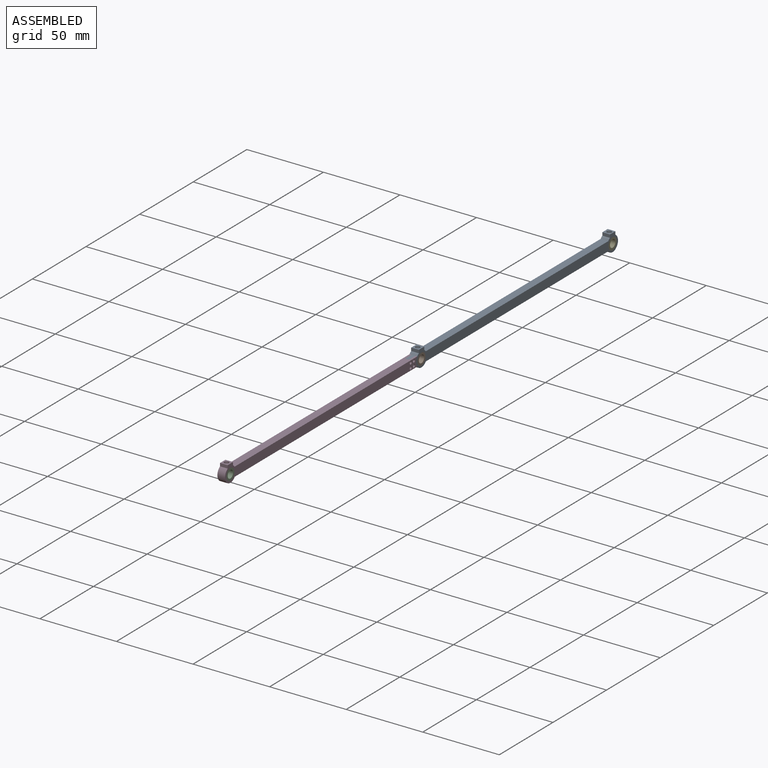
[diagram: assembled view]
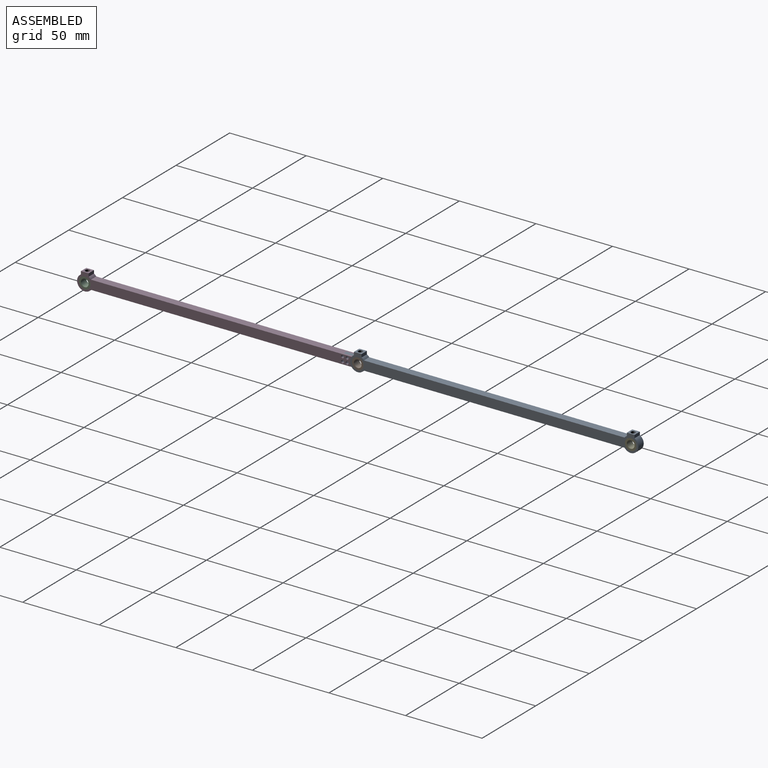
[diagram: assembled view, second angle]
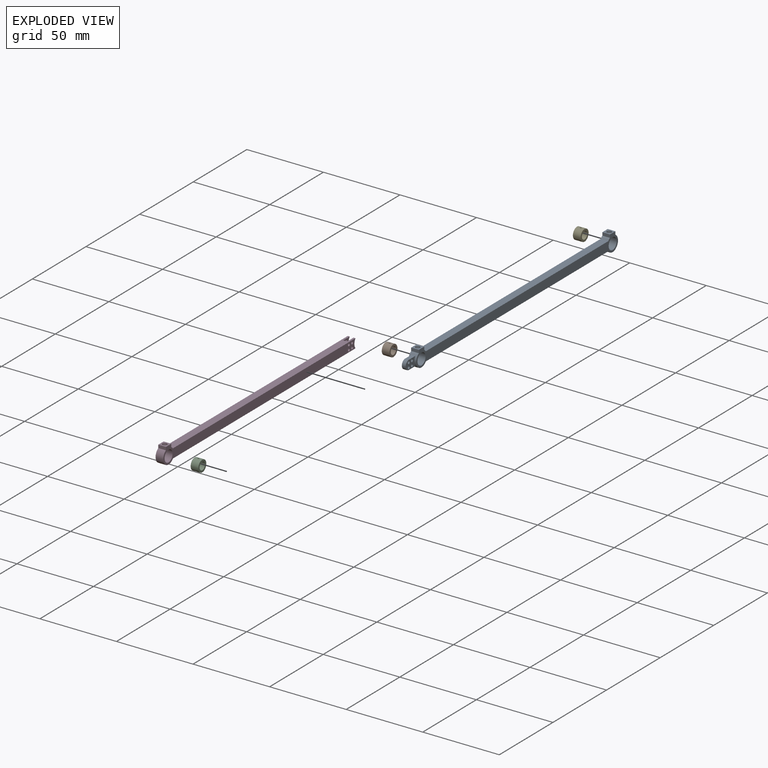
[diagram: exploded view]
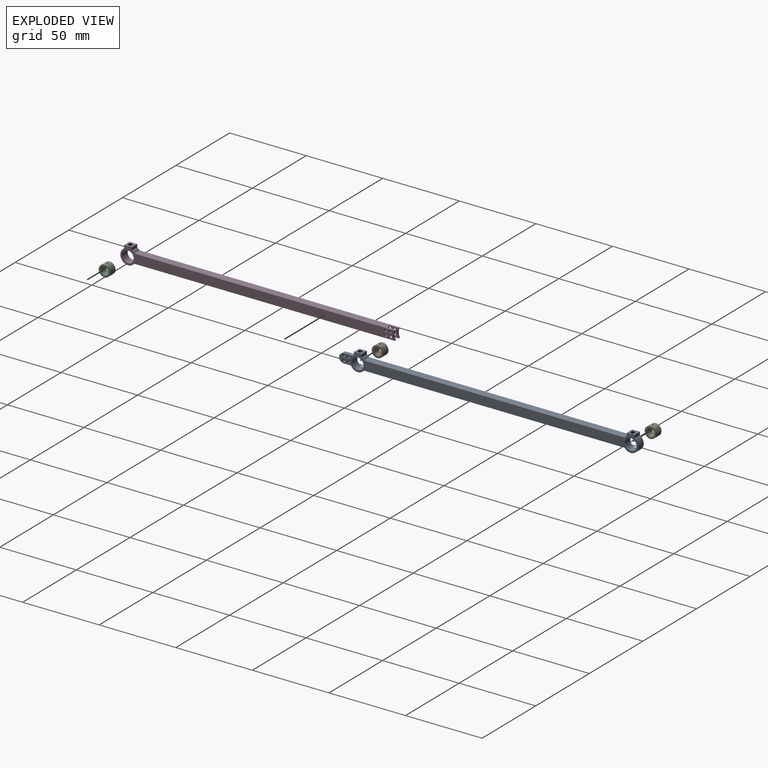
[diagram: exploded view, second angle]
ASSEMBLY  parts=5 mates=4
PART A: 27 faces, bbox 5x196.3x11.3 mm
  f0: plane 9x6mm, normal (1,0,0), area 34.7mm2, adj f2,f18,f19,f20,f21,f22,f23,f24
  f1: plane 9x6mm, normal (-1,0,0), area 34.7mm2, adj f2,f18,f19,f20,f21,f22,f23,f24
  f2: cylinder r=5mm len=9.33mm, axis (-1,0,0), area 72.5mm2, adj f0,f1,f3,f15,f16,f17,f18,f20
  f3: plane 170.25x5mm, normal (0,0,-1), area 851.3mm2, adj f2,f4,f16,f17
  f4: cylinder r=5mm len=9.33mm, axis (-1,0,0), area 88.6mm2, adj f3,f5,f16,f17
  f5: plane 5x2mm, normal (0,1,0), area 10mm2, adj f4,f6,f16,f17
  f6: plane 5x5mm, normal (0,0,1), area 17.9mm2, adj f5,f7,f16,f17,f26
  f7: plane 5x2mm, normal (0,-1,0), area 10mm2, adj f6,f8,f16,f17
  f8: cylinder r=5mm len=5mm, axis (-1,0,0), area 10.1mm2, adj f7,f9,f16,f17
  f9: plane 170.25x5mm, normal (0,0,1), area 851.3mm2, adj f8,f10,f16,f17
  f10: cylinder r=5mm len=5mm, axis (-1,0,0), area 10.1mm2, adj f9,f11,f16,f17
  f11: plane 5x2mm, normal (0,1,0), area 10mm2, adj f10,f12,f16,f17
  f12: plane 5x5mm, normal (0,0,1), area 17.9mm2, adj f11,f15,f16,f17,f25
  f13: cylinder r=3.75mm len=7.5mm, axis (-1,0,0), area 110.6mm2, adj f16,f17,f26
  f14: cylinder r=3.75mm len=7.5mm, axis (-1,0,0), area 110.6mm2, adj f16,f17,f25
  f15: plane 5x2mm, normal (0,-1,0), area 10mm2, adj f2,f12,f16,f17
  f16: plane 188.25x11.33mm, normal (1,0,0), area 1097.5mm2, adj f2,f3,f4,f5,f6,f7,f8,f9
  f17: plane 188.25x11.33mm, normal (-1,0,0), area 1097.5mm2, adj f2,f3,f4,f5,f6,f7,f8,f9
  f18: plane 6x2.5mm, normal (0,0,1), area 15mm2, adj f0,f1,f2,f19
  f19: cylinder r=3mm len=6mm, axis (-1,0,0), area 23.6mm2, adj f0,f1,f18,f20
  f20: plane 6x2.5mm, normal (0,0,-1), area 15mm2, adj f0,f1,f2,f19
  f21: cylinder r=0.95mm len=2.5mm, axis (1,0,0), area 14.9mm2, adj f0,f1
  f22: cylinder r=0.95mm len=2.5mm, axis (1,0,0), area 14.9mm2, adj f0,f1
  f23: cylinder r=0.95mm len=2.5mm, axis (1,0,0), area 14.9mm2, adj f0,f1
  f24: cylinder r=0.95mm len=2.5mm, axis (1,0,0), area 14.9mm2, adj f0,f1
  f25: cylinder r=1.5mm len=3mm, axis (0,0,1), area 25.8mm2, adj f12,f14
  f26: cylinder r=1.5mm len=3mm, axis (0,0,1), area 25.8mm2, adj f6,f13
PART B: 5 faces, bbox 5x7.5x7.5 mm
  f0: plane 7.5x7.5mm, normal (1,0,0), area 24.5mm2, adj f1,f2
  f1: cylinder r=3.75mm len=7.5mm, axis (-1,0,0), area 117mm2, adj f0,f3,f4
  f2: cylinder r=2.5mm len=5mm, axis (-1,0,0), area 77.8mm2, adj f0,f3,f4
  f3: plane 7.5x7.5mm, normal (-1,0,0), area 24.5mm2, adj f1,f2
  f4: cylinder r=0.5mm len=1.3mm, axis (0,0,1), area 4mm2, adj f1,f2
PART C: same geometry as B
PART D: 24 faces, bbox 5x179.3x11.3 mm
  f0: plane 179.25x11.33mm, normal (1,0,0), area 1044.1mm2, adj f5,f6,f7,f8,f9,f10,f11,f12
  f1: plane 179.25x11.33mm, normal (-1,0,0), area 1044.1mm2, adj f5,f6,f7,f8,f9,f10,f11,f12
  f2: plane 9x6mm, normal (1,0,0), area 34.7mm2, adj f4,f8,f9,f13,f19,f20,f21,f22
  f3: plane 9x6mm, normal (-1,0,0), area 34.7mm2, adj f4,f8,f9,f14,f15,f16,f17,f18
  f4: cylinder r=3mm len=6mm, axis (-1,0,0), area 23.6mm2, adj f2,f3,f8,f9
  f5: plane 5x5mm, normal (0,0,1), area 17.9mm2, adj f0,f1,f6,f11,f23
  f6: plane 5x2mm, normal (0,-1,0), area 10mm2, adj f0,f1,f5,f7
  f7: cylinder r=5mm len=9.33mm, axis (-1,0,0), area 88.6mm2, adj f0,f1,f6,f8
  f8: plane 170.25x5mm, normal (0,0,-1), area 836.2mm2, adj f0,f1,f2,f3,f4,f7,f13,f14
  f9: plane 170.25x5mm, normal (0,0,1), area 836.2mm2, adj f0,f1,f2,f3,f4,f10,f13,f14
  f10: cylinder r=5mm len=5mm, axis (-1,0,0), area 10.1mm2, adj f0,f1,f9,f11
  f11: plane 5x2mm, normal (0,1,0), area 10mm2, adj f0,f1,f5,f10
  f12: cylinder r=3.75mm len=7.5mm, axis (-1,0,0), area 110.6mm2, adj f0,f1,f23
  f13: cylinder r=5mm len=6mm, axis (-1,0,0), area 8mm2, adj f1,f2,f8,f9
  f14: cylinder r=5mm len=6mm, axis (-1,0,0), area 8mm2, adj f0,f3,f8,f9
  f15: cylinder r=0.95mm len=1.9mm, axis (1,0,0), area 7.5mm2, adj f0,f3
  f16: cylinder r=0.95mm len=1.9mm, axis (1,0,0), area 7.5mm2, adj f0,f3
  f17: cylinder r=0.95mm len=1.9mm, axis (1,0,0), area 7.5mm2, adj f0,f3
  f18: cylinder r=0.95mm len=1.9mm, axis (1,0,0), area 7.5mm2, adj f0,f3
  f19: cylinder r=0.95mm len=1.9mm, axis (1,0,0), area 7.5mm2, adj f1,f2
  f20: cylinder r=0.95mm len=1.9mm, axis (1,0,0), area 7.5mm2, adj f1,f2
  f21: cylinder r=0.95mm len=1.9mm, axis (1,0,0), area 7.5mm2, adj f1,f2
  f22: cylinder r=0.95mm len=1.9mm, axis (1,0,0), area 7.5mm2, adj f1,f2
  f23: cylinder r=1.5mm len=3mm, axis (0,0,1), area 25.8mm2, adj f5,f12
PART E: same geometry as B
PLACE A t=(-6.84,162.61,7.01)mm
PLACE B t=(-9.34,106.22,-3.03)mm
PLACE C t=(-9.34,-72.03,-3.03)mm
PLACE D t=(-9.34,-33.66,11.53)mm
PLACE E t=(-9.34,284.47,-3.03)mm
MATE fastened B.f1 <-> A.f2  axis (-1,0,0) through (-4.34,90.72,11.53)mm
MATE fastened A.f24 <-> D.f15  axis (1,0,0) through (-5.59,83.72,13.03)mm
MATE fastened C.f1 <-> D.f12  axis (-1,0,0) through (-4.34,-87.53,11.53)mm
MATE fastened A.f4 <-> E.f1  axis (-1,0,0) through (-4.34,268.97,11.53)mm
